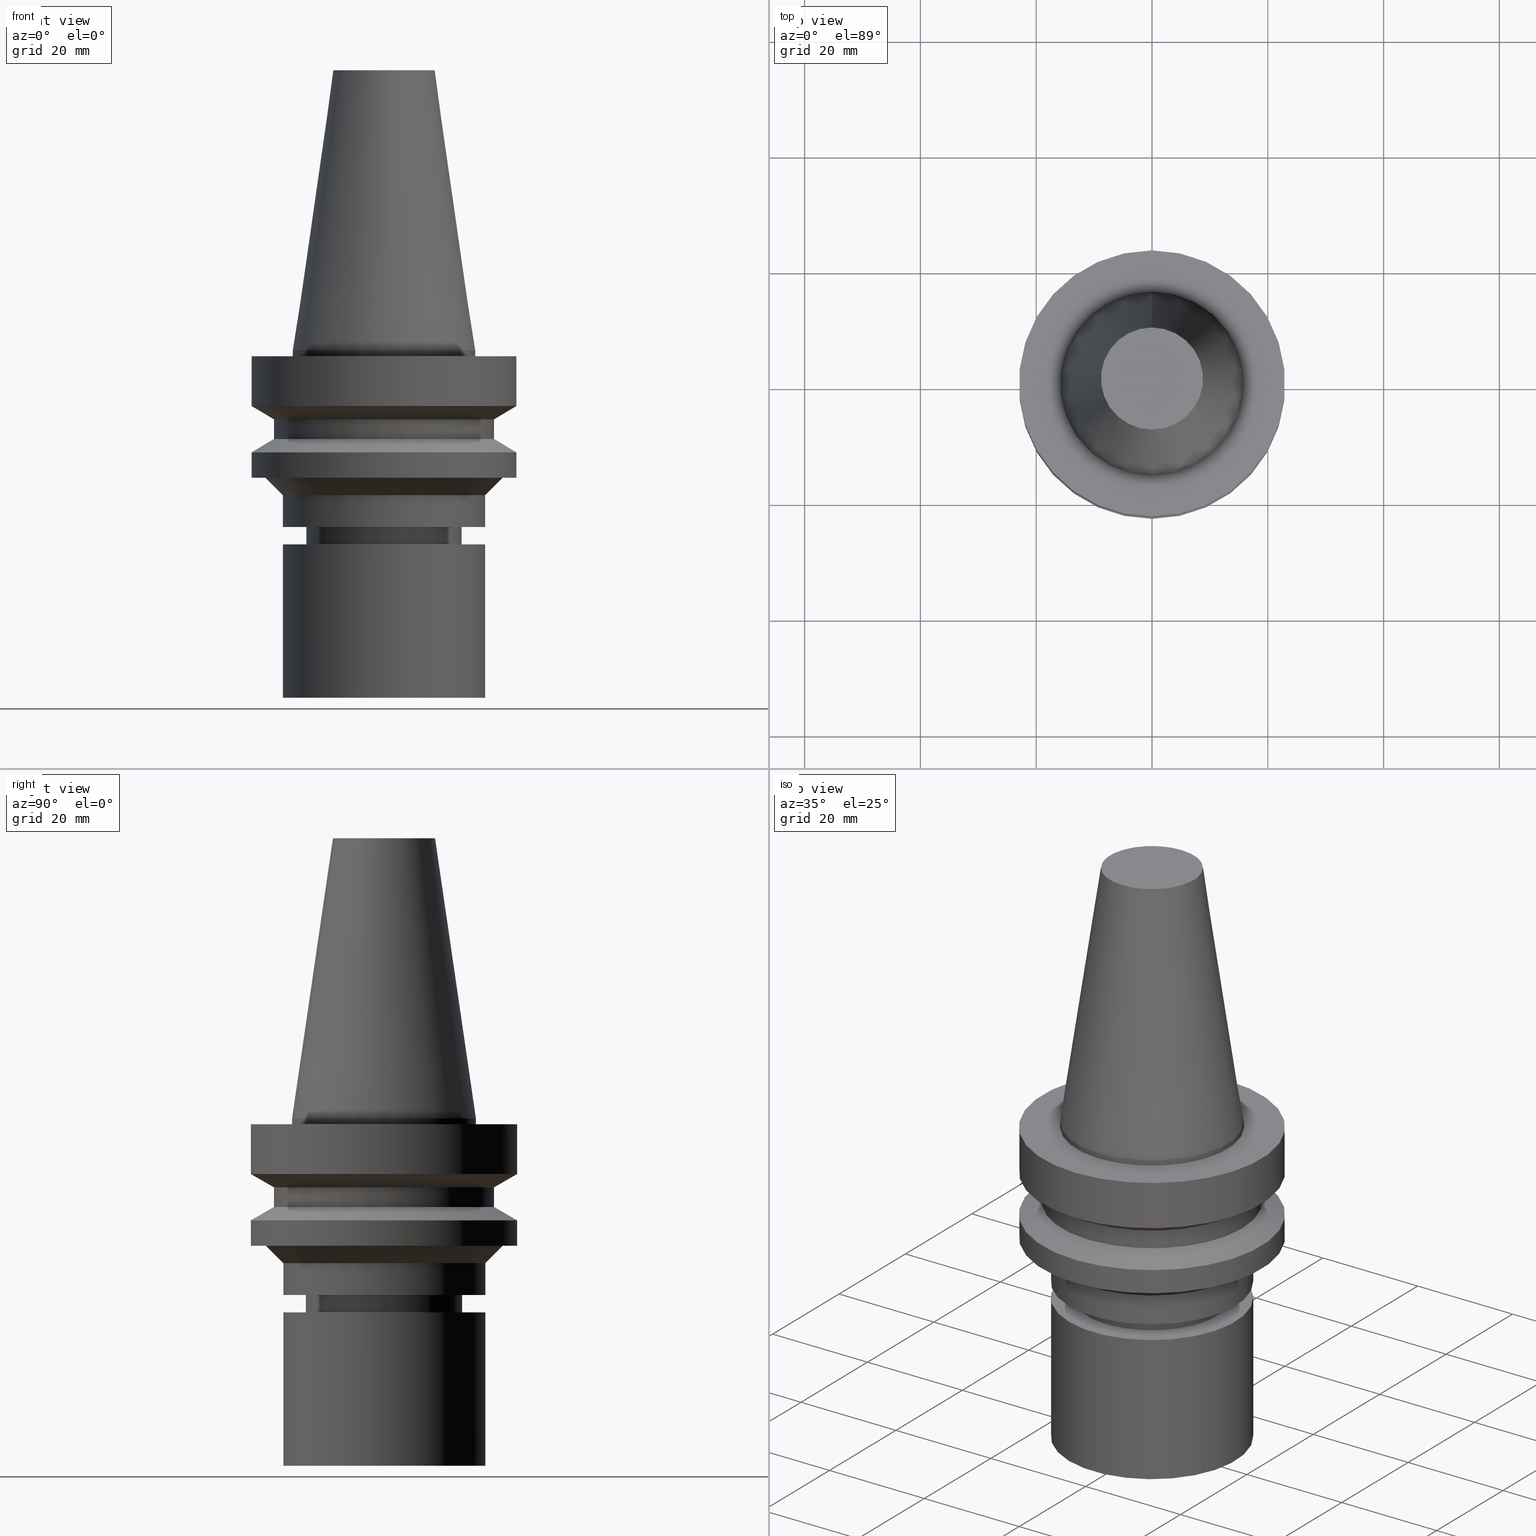
[diagram: canonical four-view strip — front | top / right | iso, engineering-drawing reading convention]
A machine part, canonical four-view strip (front | top / right | iso — engineering-drawing reading convention). The complete STEP part file that produces these views, byte-faithful:
ISO-10303-21;
HEADER;
FILE_DESCRIPTION((''),'1');
FILE_NAME('V:/90_\X2\53D65F9730C730FC30BF\X0\/00_\X2\6DE18DEF30C730FC30BF\X0\/ALL/BBT-BKUS\X2\FF76FF80FF9BFF78FF9E752852A05DE556F3\X0\201801/BBT30-MEGAER/BBT30-MEGAER20-60NL.stp','2018-02-02T07:13:11',(''),(''),'Spatial Interop R21 SP3','Kubotek KeyCreator 2011 V10.0.2 (22737)',' ');
FILE_SCHEMA(('automotive_design'));
ENDSEC;
DATA;
#1=MECHANICAL_DESIGN_GEOMETRIC_PRESENTATION_REPRESENTATION(' ',(#14,#15,#16,#17,#18,#19,#20,#21,#22,#23,#24,#25,#26,#27,#28,#29,#30,#31,#32,#33,#34,#35,#36,#37,#38,#39,#40,#41,#42,#43,#44,#45,#46,#47,#48,#49,#50,#51,#52,#53,#54,#55),#10);
#2=PRODUCT_DEFINITION_CONTEXT('',#56,'design');
#3=APPLICATION_PROTOCOL_DEFINITION('INTERNATIONAL STANDARD','automotive_design',1994,#56);
#4=PRODUCT_CATEGORY_RELATIONSHIP('NONE','NONE',#57,#58);
#5=SHAPE_DEFINITION_REPRESENTATION(#59,#60);
#6=PRODUCT_DEFINITION_CONTEXT('',#61,'design');
#7=APPLICATION_PROTOCOL_DEFINITION('INTERNATIONAL STANDARD','automotive_design',1994,#61);
#8=PRODUCT_CATEGORY_RELATIONSHIP('NONE','NONE',#62,#63);
#9=SHAPE_DEFINITION_REPRESENTATION(#64,#65);
#10= (GEOMETRIC_REPRESENTATION_CONTEXT(3)GLOBAL_UNCERTAINTY_ASSIGNED_CONTEXT((#68))GLOBAL_UNIT_ASSIGNED_CONTEXT((#70,#71,#72))REPRESENTATION_CONTEXT('NONE','WORKSPACE'));
#14=STYLED_ITEM('',(#74),#75);
#15=STYLED_ITEM('',(#76,#77),#78);
#16=STYLED_ITEM('',(#79),#80);
#17=STYLED_ITEM('',(#81,#82),#83);
#18=STYLED_ITEM('',(#84,#85),#86);
#19=STYLED_ITEM('',(#87,#88),#89);
#20=STYLED_ITEM('',(#90),#91);
#21=STYLED_ITEM('',(#92,#93),#94);
#22=STYLED_ITEM('',(#95,#96),#97);
#23=STYLED_ITEM('',(#98),#99);
#24=STYLED_ITEM('',(#100,#101),#102);
#25=STYLED_ITEM('',(#103,#104),#105);
#26=STYLED_ITEM('',(#106,#107),#108);
#27=STYLED_ITEM('',(#109),#110);
#28=STYLED_ITEM('',(#111),#112);
#29=STYLED_ITEM('',(#113),#114);
#30=STYLED_ITEM('',(#115),#116);
#31=STYLED_ITEM('',(#117),#118);
#32=STYLED_ITEM('',(#119),#120);
#33=STYLED_ITEM('',(#121,#122),#123);
#34=STYLED_ITEM('',(#124),#125);
#35=STYLED_ITEM('',(#126,#127),#128);
#36=STYLED_ITEM('',(#129),#130);
#37=STYLED_ITEM('',(#131,#132),#133);
#38=STYLED_ITEM('',(#134,#135),#136);
#39=STYLED_ITEM('',(#137,#138),#139);
#40=STYLED_ITEM('',(#140),#141);
#41=STYLED_ITEM('',(#142,#143),#144);
#42=STYLED_ITEM('',(#145,#146),#147);
#43=STYLED_ITEM('',(#148,#149),#150);
#44=STYLED_ITEM('',(#151),#152);
#45=STYLED_ITEM('',(#153),#154);
#46=STYLED_ITEM('',(#155),#156);
#47=STYLED_ITEM('',(#157),#158);
#48=STYLED_ITEM('',(#159,#160),#161);
#49=STYLED_ITEM('',(#162),#163);
#50=STYLED_ITEM('',(#164,#165),#166);
#51=STYLED_ITEM('',(#167,#168),#169);
#52=STYLED_ITEM('',(#170,#171),#172);
#53=STYLED_ITEM('',(#173,#174),#175);
#54=STYLED_ITEM('',(#176,#177),#178);
#55=STYLED_ITEM('',(#179),#180);
#56=APPLICATION_CONTEXT(' ');
#57=PRODUCT_CATEGORY('part','NONE');
#58=PRODUCT_RELATED_PRODUCT_CATEGORY('detail',' ',(#181));
#59=PRODUCT_DEFINITION_SHAPE('NONE','NONE',#182);
#60=ADVANCED_BREP_SHAPE_REPRESENTATION('Unnamed[1]',(#144,#183),#10);
#61=APPLICATION_CONTEXT(' ');
#62=PRODUCT_CATEGORY('part','NONE');
#63=PRODUCT_RELATED_PRODUCT_CATEGORY('detail',' ',(#184));
#64=PRODUCT_DEFINITION_SHAPE('NONE','NONE',#185);
#65=ADVANCED_BREP_SHAPE_REPRESENTATION('Unnamed[1]',(#86,#186),#10);
#68=UNCERTAINTY_MEASURE_WITH_UNIT(LENGTH_MEASURE(1.0E-006),#70,'','');
#70= (CONVERSION_BASED_UNIT('MILLIMETRE',#189)LENGTH_UNIT()NAMED_UNIT(#192));
#71= (NAMED_UNIT(#194)PLANE_ANGLE_UNIT()SI_UNIT($,.RADIAN.));
#72= (NAMED_UNIT(#194)SOLID_ANGLE_UNIT()SI_UNIT($,.STERADIAN.));
#74=PRESENTATION_STYLE_ASSIGNMENT((#200));
#75=EDGE_CURVE('Unnamed[1]',#201,#201,#202,.T.);
#76=PRESENTATION_STYLE_ASSIGNMENT((#203));
#77=PRESENTATION_STYLE_ASSIGNMENT((#204));
#78=ADVANCED_FACE('Unnamed[1]',(#205,#206),#207,.T.);
#79=PRESENTATION_STYLE_ASSIGNMENT((#208));
#80=EDGE_CURVE('Unnamed[1]',#209,#209,#210,.T.);
#81=PRESENTATION_STYLE_ASSIGNMENT((#211));
#82=PRESENTATION_STYLE_ASSIGNMENT((#212));
#83=ADVANCED_FACE('Unnamed[1]',(#213,#214),#215,.T.);
#84=PRESENTATION_STYLE_ASSIGNMENT((#216));
#85=PRESENTATION_STYLE_ASSIGNMENT((#217));
#86=MANIFOLD_SOLID_BREP('Unnamed[1]',#218);
#87=PRESENTATION_STYLE_ASSIGNMENT((#219));
#88=PRESENTATION_STYLE_ASSIGNMENT((#220));
#89=ADVANCED_FACE('Unnamed[1]',(#221,#222),#223,.T.);
#90=PRESENTATION_STYLE_ASSIGNMENT((#224));
#91=EDGE_CURVE('Unnamed[1]',#225,#225,#226,.T.);
#92=PRESENTATION_STYLE_ASSIGNMENT((#227));
#93=PRESENTATION_STYLE_ASSIGNMENT((#228));
#94=ADVANCED_FACE('Unnamed[1]',(#229,#230),#231,.T.);
#95=PRESENTATION_STYLE_ASSIGNMENT((#232));
#96=PRESENTATION_STYLE_ASSIGNMENT((#233));
#97=ADVANCED_FACE('Unnamed[1]',(#234),#235,.T.);
#98=PRESENTATION_STYLE_ASSIGNMENT((#236));
#99=EDGE_CURVE('Unnamed[1]',#237,#237,#238,.T.);
#100=PRESENTATION_STYLE_ASSIGNMENT((#239));
#101=PRESENTATION_STYLE_ASSIGNMENT((#240));
#102=ADVANCED_FACE('Unnamed[1]',(#241,#242),#243,.T.);
#103=PRESENTATION_STYLE_ASSIGNMENT((#244));
#104=PRESENTATION_STYLE_ASSIGNMENT((#245));
#105=ADVANCED_FACE('Unnamed[1]',(#246,#247),#248,.T.);
#106=PRESENTATION_STYLE_ASSIGNMENT((#249));
#107=PRESENTATION_STYLE_ASSIGNMENT((#250));
#108=ADVANCED_FACE('Unnamed[1]',(#251,#252),#253,.T.);
#109=PRESENTATION_STYLE_ASSIGNMENT((#254));
#110=EDGE_CURVE('Unnamed[1]',#255,#255,#256,.T.);
#111=PRESENTATION_STYLE_ASSIGNMENT((#257));
#112=EDGE_CURVE('Unnamed[1]',#258,#258,#259,.T.);
#113=PRESENTATION_STYLE_ASSIGNMENT((#260));
#114=EDGE_CURVE('Unnamed[1]',#261,#261,#262,.T.);
#115=PRESENTATION_STYLE_ASSIGNMENT((#263));
#116=EDGE_CURVE('Unnamed[1]',#264,#264,#265,.T.);
#117=PRESENTATION_STYLE_ASSIGNMENT((#266));
#118=EDGE_CURVE('Unnamed[1]',#267,#267,#268,.T.);
#119=PRESENTATION_STYLE_ASSIGNMENT((#269));
#120=EDGE_CURVE('Unnamed[1]',#270,#270,#271,.T.);
#121=PRESENTATION_STYLE_ASSIGNMENT((#272));
#122=PRESENTATION_STYLE_ASSIGNMENT((#273));
#123=ADVANCED_FACE('Unnamed[1]',(#274,#275),#276,.T.);
#124=PRESENTATION_STYLE_ASSIGNMENT((#277));
#125=EDGE_CURVE('Unnamed[1]',#278,#278,#279,.T.);
#126=PRESENTATION_STYLE_ASSIGNMENT((#280));
#127=PRESENTATION_STYLE_ASSIGNMENT((#281));
#128=ADVANCED_FACE('Unnamed[1]',(#282,#283),#284,.T.);
#129=PRESENTATION_STYLE_ASSIGNMENT((#285));
#130=EDGE_CURVE('Unnamed[1]',#286,#286,#287,.T.);
#131=PRESENTATION_STYLE_ASSIGNMENT((#288));
#132=PRESENTATION_STYLE_ASSIGNMENT((#289));
#133=ADVANCED_FACE('Unnamed[1]',(#290,#291),#292,.T.);
#134=PRESENTATION_STYLE_ASSIGNMENT((#293));
#135=PRESENTATION_STYLE_ASSIGNMENT((#294));
#136=ADVANCED_FACE('Unnamed[1]',(#295,#296),#297,.T.);
#137=PRESENTATION_STYLE_ASSIGNMENT((#298));
#138=PRESENTATION_STYLE_ASSIGNMENT((#299));
#139=ADVANCED_FACE('Unnamed[1]',(#300),#301,.T.);
#140=PRESENTATION_STYLE_ASSIGNMENT((#302));
#141=EDGE_CURVE('Unnamed[1]',#303,#303,#304,.T.);
#142=PRESENTATION_STYLE_ASSIGNMENT((#305));
#143=PRESENTATION_STYLE_ASSIGNMENT((#306));
#144=MANIFOLD_SOLID_BREP('Unnamed[1]',#307);
#145=PRESENTATION_STYLE_ASSIGNMENT((#308));
#146=PRESENTATION_STYLE_ASSIGNMENT((#309));
#147=ADVANCED_FACE('Unnamed[1]',(#310,#311),#312,.T.);
#148=PRESENTATION_STYLE_ASSIGNMENT((#313));
#149=PRESENTATION_STYLE_ASSIGNMENT((#314));
#150=ADVANCED_FACE('Unnamed[1]',(#315,#316),#317,.T.);
#151=PRESENTATION_STYLE_ASSIGNMENT((#318));
#152=EDGE_CURVE('Unnamed[1]',#319,#319,#320,.T.);
#153=PRESENTATION_STYLE_ASSIGNMENT((#321));
#154=EDGE_CURVE('Unnamed[1]',#322,#322,#323,.T.);
#155=PRESENTATION_STYLE_ASSIGNMENT((#324));
#156=EDGE_CURVE('Unnamed[1]',#325,#325,#326,.T.);
#157=PRESENTATION_STYLE_ASSIGNMENT((#327));
#158=EDGE_CURVE('Unnamed[1]',#328,#328,#329,.T.);
#159=PRESENTATION_STYLE_ASSIGNMENT((#330));
#160=PRESENTATION_STYLE_ASSIGNMENT((#331));
#161=ADVANCED_FACE('Unnamed[1]',(#332),#333,.T.);
#162=PRESENTATION_STYLE_ASSIGNMENT((#334));
#163=EDGE_CURVE('Unnamed[1]',#335,#335,#336,.T.);
#164=PRESENTATION_STYLE_ASSIGNMENT((#337));
#165=PRESENTATION_STYLE_ASSIGNMENT((#338));
#166=ADVANCED_FACE('Unnamed[1]',(#339,#340),#341,.T.);
#167=PRESENTATION_STYLE_ASSIGNMENT((#342));
#168=PRESENTATION_STYLE_ASSIGNMENT((#343));
#169=ADVANCED_FACE('Unnamed[1]',(#344,#345),#346,.T.);
#170=PRESENTATION_STYLE_ASSIGNMENT((#347));
#171=PRESENTATION_STYLE_ASSIGNMENT((#348));
#172=ADVANCED_FACE('Unnamed[1]',(#349),#350,.T.);
#173=PRESENTATION_STYLE_ASSIGNMENT((#351));
#174=PRESENTATION_STYLE_ASSIGNMENT((#352));
#175=ADVANCED_FACE('Unnamed[1]',(#353,#354),#355,.T.);
#176=PRESENTATION_STYLE_ASSIGNMENT((#356));
#177=PRESENTATION_STYLE_ASSIGNMENT((#357));
#178=ADVANCED_FACE('Unnamed[1]',(#358,#359),#360,.T.);
#179=PRESENTATION_STYLE_ASSIGNMENT((#361));
#180=EDGE_CURVE('Unnamed[1]',#362,#362,#363,.T.);
#181=PRODUCT('Unnamed[1]','Unnamed[1]','PART-Unnamed[1]-DESC',(#364));
#182=PRODUCT_DEFINITION('NONE','NONE',#365,#2);
#183=AXIS2_PLACEMENT_3D('',#366,#367,#368);
#184=PRODUCT('Unnamed[1]','Unnamed[1]','PART-Unnamed[1]-DESC',(#369));
#185=PRODUCT_DEFINITION('NONE','NONE',#370,#6);
#186=AXIS2_PLACEMENT_3D('',#371,#372,#373);
#189=LENGTH_MEASURE_WITH_UNIT(LENGTH_MEASURE(1.0),#374);
#192=DIMENSIONAL_EXPONENTS(1.0,0.0,0.0,0.0,0.0,0.0,0.0);
#194=DIMENSIONAL_EXPONENTS(0.0,0.0,0.0,0.0,0.0,0.0,0.0);
#200=CURVE_STYLE('',#375,POSITIVE_LENGTH_MEASURE(1000.0),#376);
#201=VERTEX_POINT('',#377);
#202=CIRCLE('',#378,11.3999999999978);
#203=SURFACE_STYLE_USAGE(.BOTH.,#379);
#204=CURVE_STYLE('',#380,POSITIVE_LENGTH_MEASURE(1000.0),#381);
#205=FACE_BOUND('',#382,.T.);
#206=FACE_OUTER_BOUND('',#383,.T.);
#207=PLANE('',#384);
#208=CURVE_STYLE('',#385,POSITIVE_LENGTH_MEASURE(1000.0),#386);
#209=VERTEX_POINT('',#387);
#210=CIRCLE('',#388,23.0);
#211=SURFACE_STYLE_USAGE(.BOTH.,#389);
#212=CURVE_STYLE('',#390,POSITIVE_LENGTH_MEASURE(1000.0),#391);
#213=FACE_BOUND('',#392,.T.);
#214=FACE_BOUND('',#393,.T.);
#215=CYLINDRICAL_SURFACE('',#394,13.4999999999956);
#216=SURFACE_STYLE_USAGE(.BOTH.,#395);
#217=CURVE_STYLE('',#396,POSITIVE_LENGTH_MEASURE(1000.0),#397);
#218=CLOSED_SHELL('',(#97,#139,#133));
#219=SURFACE_STYLE_USAGE(.BOTH.,#398);
#220=CURVE_STYLE('',#399,POSITIVE_LENGTH_MEASURE(1000.0),#400);
#221=FACE_BOUND('',#401,.T.);
#222=FACE_OUTER_BOUND('',#402,.T.);
#223=PLANE('',#403);
#224=CURVE_STYLE('',#404,POSITIVE_LENGTH_MEASURE(1000.0),#405);
#225=VERTEX_POINT('',#406);
#226=CIRCLE('',#407,23.0);
#227=SURFACE_STYLE_USAGE(.BOTH.,#408);
#228=CURVE_STYLE('',#409,POSITIVE_LENGTH_MEASURE(1000.0),#410);
#229=FACE_BOUND('',#411,.T.);
#230=FACE_BOUND('',#412,.T.);
#231=CONICAL_SURFACE('',#413,21.0,1.04719755058882);
#232=SURFACE_STYLE_USAGE(.BOTH.,#414);
#233=CURVE_STYLE('',#415,POSITIVE_LENGTH_MEASURE(1000.0),#416);
#234=FACE_OUTER_BOUND('',#417,.T.);
#235=PLANE('',#418);
#236=CURVE_STYLE('',#419,POSITIVE_LENGTH_MEASURE(1000.0),#420);
#237=VERTEX_POINT('',#421);
#238=CIRCLE('',#422,12.4999999999999);
#239=SURFACE_STYLE_USAGE(.BOTH.,#423);
#240=CURVE_STYLE('',#424,POSITIVE_LENGTH_MEASURE(1000.0),#425);
#241=FACE_BOUND('',#426,.T.);
#242=FACE_BOUND('',#427,.T.);
#243=CONICAL_SURFACE('',#428,12.3457500009933,0.144815870013618);
#244=SURFACE_STYLE_USAGE(.BOTH.,#429);
#245=CURVE_STYLE('',#430,POSITIVE_LENGTH_MEASURE(1000.0),#431);
#246=FACE_BOUND('',#432,.T.);
#247=FACE_BOUND('',#433,.T.);
#248=CYLINDRICAL_SURFACE('',#434,17.4999999999997);
#249=SURFACE_STYLE_USAGE(.BOTH.,#435);
#250=CURVE_STYLE('',#436,POSITIVE_LENGTH_MEASURE(1000.0),#437);
#251=FACE_BOUND('',#438,.T.);
#252=FACE_BOUND('',#439,.T.);
#253=CONICAL_SURFACE('',#440,13.0000000000002,1.04719755119484);
#254=CURVE_STYLE('',#441,POSITIVE_LENGTH_MEASURE(1000.0),#442);
#255=VERTEX_POINT('',#443);
#256=CIRCLE('',#444,19.0);
#257=CURVE_STYLE('',#445,POSITIVE_LENGTH_MEASURE(1000.0),#446);
#258=VERTEX_POINT('',#447);
#259=CIRCLE('',#448,17.5);
#260=CURVE_STYLE('',#449,POSITIVE_LENGTH_MEASURE(1000.0),#450);
#261=VERTEX_POINT('',#451);
#262=CIRCLE('',#452,17.5);
#263=CURVE_STYLE('',#453,POSITIVE_LENGTH_MEASURE(1000.0),#454);
#264=VERTEX_POINT('',#455);
#265=CIRCLE('',#456,8.81650000198669);
#266=CURVE_STYLE('',#457,POSITIVE_LENGTH_MEASURE(1000.0),#458);
#267=VERTEX_POINT('',#459);
#268=CIRCLE('',#460,20.4999999999995);
#269=CURVE_STYLE('',#461,POSITIVE_LENGTH_MEASURE(1000.0),#462);
#270=VERTEX_POINT('',#463);
#271=CIRCLE('',#464,17.4999999999995);
#272=SURFACE_STYLE_USAGE(.BOTH.,#465);
#273=CURVE_STYLE('',#466,POSITIVE_LENGTH_MEASURE(1000.0),#467);
#274=FACE_BOUND('',#468,.T.);
#275=FACE_BOUND('',#469,.T.);
#276=CYLINDRICAL_SURFACE('',#470,15.875);
#277=CURVE_STYLE('',#471,POSITIVE_LENGTH_MEASURE(1000.0),#472);
#278=VERTEX_POINT('',#473);
#279=CIRCLE('',#474,23.0);
#280=SURFACE_STYLE_USAGE(.BOTH.,#475);
#281=CURVE_STYLE('',#476,POSITIVE_LENGTH_MEASURE(1000.0),#477);
#282=FACE_BOUND('',#478,.T.);
#283=FACE_BOUND('',#479,.T.);
#284=CONICAL_SURFACE('',#480,18.9999999999995,0.785398163397406);
#285=CURVE_STYLE('',#481,POSITIVE_LENGTH_MEASURE(1000.0),#482);
#286=VERTEX_POINT('',#483);
#287=CIRCLE('',#484,19.0);
#288=SURFACE_STYLE_USAGE(.BOTH.,#485);
#289=CURVE_STYLE('',#486,POSITIVE_LENGTH_MEASURE(1000.0),#487);
#290=FACE_BOUND('',#488,.T.);
#291=FACE_BOUND('',#489,.T.);
#292=CYLINDRICAL_SURFACE('',#490,17.5);
#293=SURFACE_STYLE_USAGE(.BOTH.,#491);
#294=CURVE_STYLE('',#492,POSITIVE_LENGTH_MEASURE(1000.0),#493);
#295=FACE_BOUND('',#494,.T.);
#296=FACE_BOUND('',#495,.T.);
#297=CYLINDRICAL_SURFACE('',#496,12.4999999999999);
#298=SURFACE_STYLE_USAGE(.BOTH.,#497);
#299=CURVE_STYLE('',#498,POSITIVE_LENGTH_MEASURE(1000.0),#499);
#300=FACE_OUTER_BOUND('',#500,.T.);
#301=PLANE('',#501);
#302=CURVE_STYLE('',#502,POSITIVE_LENGTH_MEASURE(1000.0),#503);
#303=VERTEX_POINT('',#504);
#304=CIRCLE('',#505,12.4999999999998);
#305=SURFACE_STYLE_USAGE(.BOTH.,#506);
#306=CURVE_STYLE('',#507,POSITIVE_LENGTH_MEASURE(1000.0),#508);
#307=CLOSED_SHELL('',(#172,#102,#123,#178,#150,#169,#147,#94,#175,#78,#128,#105,#89,#83,#108,#136,#166,#161));
#308=SURFACE_STYLE_USAGE(.BOTH.,#509);
#309=CURVE_STYLE('',#510,POSITIVE_LENGTH_MEASURE(1000.0),#511);
#310=FACE_BOUND('',#512,.T.);
#311=FACE_BOUND('',#513,.T.);
#312=CYLINDRICAL_SURFACE('',#514,19.0);
#313=SURFACE_STYLE_USAGE(.BOTH.,#515);
#314=CURVE_STYLE('',#516,POSITIVE_LENGTH_MEASURE(1000.0),#517);
#315=FACE_BOUND('',#518,.T.);
#316=FACE_BOUND('',#519,.T.);
#317=CYLINDRICAL_SURFACE('',#520,23.0);
#318=CURVE_STYLE('',#521,POSITIVE_LENGTH_MEASURE(1000.0),#522);
#319=VERTEX_POINT('',#523);
#320=CIRCLE('',#524,15.875);
#321=CURVE_STYLE('',#525,POSITIVE_LENGTH_MEASURE(1000.0),#526);
#322=VERTEX_POINT('',#527);
#323=CIRCLE('',#528,13.4999999999908);
#324=CURVE_STYLE('',#529,POSITIVE_LENGTH_MEASURE(1000.0),#530);
#325=VERTEX_POINT('',#531);
#326=CIRCLE('',#532,13.5000000000005);
#327=CURVE_STYLE('',#533,POSITIVE_LENGTH_MEASURE(1000.0),#534);
#328=VERTEX_POINT('',#535);
#329=CIRCLE('',#536,23.0);
#330=SURFACE_STYLE_USAGE(.BOTH.,#537);
#331=CURVE_STYLE('',#538,POSITIVE_LENGTH_MEASURE(1000.0),#539);
#332=FACE_OUTER_BOUND('',#540,.T.);
#333=PLANE('',#541);
#334=CURVE_STYLE('',#542,POSITIVE_LENGTH_MEASURE(1000.0),#543);
#335=VERTEX_POINT('',#544);
#336=CIRCLE('',#545,17.4999999999999);
#337=SURFACE_STYLE_USAGE(.BOTH.,#546);
#338=CURVE_STYLE('',#547,POSITIVE_LENGTH_MEASURE(1000.0),#548);
#339=FACE_BOUND('',#549,.T.);
#340=FACE_BOUND('',#550,.T.);
#341=CONICAL_SURFACE('',#551,11.9499999999988,0.523598775598662);
#342=SURFACE_STYLE_USAGE(.BOTH.,#552);
#343=CURVE_STYLE('',#553,POSITIVE_LENGTH_MEASURE(1000.0),#554);
#344=FACE_BOUND('',#555,.T.);
#345=FACE_BOUND('',#556,.T.);
#346=CONICAL_SURFACE('',#557,21.0,1.04719755058881);
#347=SURFACE_STYLE_USAGE(.BOTH.,#558);
#348=CURVE_STYLE('',#559,POSITIVE_LENGTH_MEASURE(1000.0),#560);
#349=FACE_OUTER_BOUND('',#561,.T.);
#350=PLANE('',#562);
#351=SURFACE_STYLE_USAGE(.BOTH.,#563);
#352=CURVE_STYLE('',#564,POSITIVE_LENGTH_MEASURE(1000.0),#565);
#353=FACE_BOUND('',#566,.T.);
#354=FACE_BOUND('',#567,.T.);
#355=CYLINDRICAL_SURFACE('',#568,23.0);
#356=SURFACE_STYLE_USAGE(.BOTH.,#569);
#357=CURVE_STYLE('',#570,POSITIVE_LENGTH_MEASURE(1000.0),#571);
#358=FACE_OUTER_BOUND('',#572,.T.);
#359=FACE_BOUND('',#573,.T.);
#360=PLANE('',#574);
#361=CURVE_STYLE('',#575,POSITIVE_LENGTH_MEASURE(1000.0),#576);
#362=VERTEX_POINT('',#577);
#363=CIRCLE('',#578,15.875);
#364=PRODUCT_CONTEXT('',#56,'mechanical');
#365=PRODUCT_DEFINITION_FORMATION_WITH_SPECIFIED_SOURCE(' ','NONE',#181,.NOT_KNOWN.);
#366=CARTESIAN_POINT('',(0.0,0.0,0.0));
#367=DIRECTION('',(0.0,0.0,1.0));
#368=DIRECTION('',(1.0,0.0,0.0));
#369=PRODUCT_CONTEXT('',#61,'mechanical');
#370=PRODUCT_DEFINITION_FORMATION_WITH_SPECIFIED_SOURCE(' ','NONE',#184,.NOT_KNOWN.);
#371=CARTESIAN_POINT('',(0.0,0.0,0.0));
#372=DIRECTION('',(0.0,0.0,1.0));
#373=DIRECTION('',(1.0,0.0,0.0));
#374= (NAMED_UNIT(#192)LENGTH_UNIT()SI_UNIT(.MILLI.,.METRE.));
#375=DRAUGHTING_PRE_DEFINED_CURVE_FONT('continuous');
#376=COLOUR_RGB('',0.0,1.0,0.0);
#377=CARTESIAN_POINT('',(3.07386346585987E-015,11.3999999999978,-50.2000000000002));
#378=AXIS2_PLACEMENT_3D('',#580,#581,#582);
#379=SURFACE_SIDE_STYLE('',(#583));
#380=DRAUGHTING_PRE_DEFINED_CURVE_FONT('continuous');
#381=COLOUR_RGB('',0.0,1.0,0.0);
#382=EDGE_LOOP('',(#584));
#383=EDGE_LOOP('',(#585));
#384=AXIS2_PLACEMENT_3D('',#586,#587,#588);
#385=DRAUGHTING_PRE_DEFINED_CURVE_FONT('continuous');
#386=COLOUR_RGB('',0.0,1.0,0.0);
#387=CARTESIAN_POINT('',(1.07768918324967E-015,23.0,-17.6));
#388=AXIS2_PLACEMENT_3D('',#589,#590,#591);
#389=SURFACE_SIDE_STYLE('',(#592));
#390=DRAUGHTING_PRE_DEFINED_CURVE_FONT('continuous');
#391=COLOUR_RGB('',0.0,1.0,0.0);
#392=EDGE_LOOP('',(#593));
#393=EDGE_LOOP('',(#594));
#394=AXIS2_PLACEMENT_3D('',#595,#596,#597);
#395=SURFACE_SIDE_STYLE('',(#598));
#396=DRAUGHTING_PRE_DEFINED_CURVE_FONT('continuous');
#397=COLOUR_RGB('',0.0,1.0,0.0);
#398=SURFACE_SIDE_STYLE('',(#599));
#399=DRAUGHTING_PRE_DEFINED_CURVE_FONT('continuous');
#400=COLOUR_RGB('',0.0,1.0,0.0);
#401=EDGE_LOOP('',(#600));
#402=EDGE_LOOP('',(#601));
#403=AXIS2_PLACEMENT_3D('',#602,#603,#604);
#404=DRAUGHTING_PRE_DEFINED_CURVE_FONT('continuous');
#405=COLOUR_RGB('',0.0,1.0,0.0);
#406=CARTESIAN_POINT('',(1.34711147906209E-015,23.0,-22.0));
#407=AXIS2_PLACEMENT_3D('',#605,#606,#607);
#408=SURFACE_SIDE_STYLE('',(#608));
#409=DRAUGHTING_PRE_DEFINED_CURVE_FONT('continuous');
#410=COLOUR_RGB('',0.0,1.0,0.0);
#411=EDGE_LOOP('',(#609));
#412=EDGE_LOOP('',(#610));
#413=AXIS2_PLACEMENT_3D('',#611,#612,#613);
#414=SURFACE_SIDE_STYLE('',(#614));
#415=DRAUGHTING_PRE_DEFINED_CURVE_FONT('continuous');
#416=COLOUR_RGB('',0.0,1.0,0.0);
#417=EDGE_LOOP('',(#615));
#418=AXIS2_PLACEMENT_3D('',#616,#617,#618);
#419=DRAUGHTING_PRE_DEFINED_CURVE_FONT('continuous');
#420=COLOUR_RGB('',0.0,1.0,0.0);
#421=CARTESIAN_POINT('',(2.2594534521581E-015,12.4999999999999,-36.8996751345975));
#422=AXIS2_PLACEMENT_3D('',#619,#620,#621);
#423=SURFACE_SIDE_STYLE('',(#622));
#424=DRAUGHTING_PRE_DEFINED_CURVE_FONT('continuous');
#425=COLOUR_RGB('',0.0,1.0,0.0);
#426=EDGE_LOOP('',(#623));
#427=EDGE_LOOP('',(#624));
#428=AXIS2_PLACEMENT_3D('',#625,#626,#627);
#429=SURFACE_SIDE_STYLE('',(#628));
#430=DRAUGHTING_PRE_DEFINED_CURVE_FONT('continuous');
#431=COLOUR_RGB('',0.0,1.0,0.0);
#432=EDGE_LOOP('',(#629));
#433=EDGE_LOOP('',(#630));
#434=AXIS2_PLACEMENT_3D('',#631,#632,#633);
#435=SURFACE_SIDE_STYLE('',(#634));
#436=DRAUGHTING_PRE_DEFINED_CURVE_FONT('continuous');
#437=COLOUR_RGB('',0.0,1.0,0.0);
#438=EDGE_LOOP('',(#635));
#439=EDGE_LOOP('',(#636));
#440=AXIS2_PLACEMENT_3D('',#637,#638,#639);
#441=DRAUGHTING_PRE_DEFINED_CURVE_FONT('continuous');
#442=COLOUR_RGB('',0.0,1.0,0.0);
#443=CARTESIAN_POINT('',(7.29240495619202E-016,19.0,-11.90940108));
#444=AXIS2_PLACEMENT_3D('',#640,#641,#642);
#445=DRAUGHTING_PRE_DEFINED_CURVE_FONT('continuous');
#446=COLOUR_RGB('',0.0,1.0,0.0);
#447=CARTESIAN_POINT('',(3.67394039744206E-015,17.5,-60.0));
#448=AXIS2_PLACEMENT_3D('',#643,#644,#645);
#449=DRAUGHTING_PRE_DEFINED_CURVE_FONT('continuous');
#450=COLOUR_RGB('',0.0,1.0,0.0);
#451=CARTESIAN_POINT('',(2.05128432290318E-015,17.5,-33.5000152587891));
#452=AXIS2_PLACEMENT_3D('',#646,#647,#648);
#453=DRAUGHTING_PRE_DEFINED_CURVE_FONT('continuous');
#454=COLOUR_RGB('',0.0,1.0,0.0);
#455=CARTESIAN_POINT('',(-2.96364525393659E-015,8.81650000198669,48.4));
#456=AXIS2_PLACEMENT_3D('',#649,#650,#651);
#457=DRAUGHTING_PRE_DEFINED_CURVE_FONT('continuous');
#458=COLOUR_RGB('',0.0,1.0,0.0);
#459=CARTESIAN_POINT('',(1.34711147906209E-015,20.4999999999995,-22.0));
#460=AXIS2_PLACEMENT_3D('',#652,#653,#654);
#461=DRAUGHTING_PRE_DEFINED_CURVE_FONT('continuous');
#462=COLOUR_RGB('',0.0,1.0,0.0);
#463=CARTESIAN_POINT('',(1.53080849893421E-015,17.4999999999995,-25.0000000000002));
#464=AXIS2_PLACEMENT_3D('',#655,#656,#657);
#465=SURFACE_SIDE_STYLE('',(#658));
#466=DRAUGHTING_PRE_DEFINED_CURVE_FONT('continuous');
#467=COLOUR_RGB('',0.0,1.0,0.0);
#468=EDGE_LOOP('',(#659));
#469=EDGE_LOOP('',(#660));
#470=AXIS2_PLACEMENT_3D('',#661,#662,#663);
#471=DRAUGHTING_PRE_DEFINED_CURVE_FONT('continuous');
#472=COLOUR_RGB('',0.0,1.0,0.0);
#473=CARTESIAN_POINT('',(6.12323399573674E-017,23.0,-0.999999999999997));
#474=AXIS2_PLACEMENT_3D('',#664,#665,#666);
#475=SURFACE_SIDE_STYLE('',(#667));
#476=DRAUGHTING_PRE_DEFINED_CURVE_FONT('continuous');
#477=COLOUR_RGB('',0.0,1.0,0.0);
#478=EDGE_LOOP('',(#668));
#479=EDGE_LOOP('',(#669));
#480=AXIS2_PLACEMENT_3D('',#670,#671,#672);
#481=DRAUGHTING_PRE_DEFINED_CURVE_FONT('continuous');
#482=COLOUR_RGB('',0.0,1.0,0.0);
#483=CARTESIAN_POINT('',(9.36279151221199E-016,19.0,-15.29059892));
#484=AXIS2_PLACEMENT_3D('',#673,#674,#675);
#485=SURFACE_SIDE_STYLE('',(#676));
#486=DRAUGHTING_PRE_DEFINED_CURVE_FONT('continuous');
#487=COLOUR_RGB('',0.0,1.0,0.0);
#488=EDGE_LOOP('',(#677));
#489=EDGE_LOOP('',(#678));
#490=AXIS2_PLACEMENT_3D('',#679,#680,#681);
#491=SURFACE_SIDE_STYLE('',(#682));
#492=DRAUGHTING_PRE_DEFINED_CURVE_FONT('continuous');
#493=COLOUR_RGB('',0.0,1.0,0.0);
#494=EDGE_LOOP('',(#683));
#495=EDGE_LOOP('',(#684));
#496=AXIS2_PLACEMENT_3D('',#685,#686,#687);
#497=SURFACE_SIDE_STYLE('',(#688));
#498=DRAUGHTING_PRE_DEFINED_CURVE_FONT('continuous');
#499=COLOUR_RGB('',0.0,1.0,0.0);
#500=EDGE_LOOP('',(#689));
#501=AXIS2_PLACEMENT_3D('',#690,#691,#692);
#502=DRAUGHTING_PRE_DEFINED_CURVE_FONT('continuous');
#503=COLOUR_RGB('',0.0,1.0,0.0);
#504=CARTESIAN_POINT('',(2.95720018960001E-015,12.4999999999998,-48.2947441116725));
#505=AXIS2_PLACEMENT_3D('',#693,#694,#695);
#506=SURFACE_SIDE_STYLE('',(#696));
#507=DRAUGHTING_PRE_DEFINED_CURVE_FONT('continuous');
#508=COLOUR_RGB('',0.0,1.0,0.0);
#509=SURFACE_SIDE_STYLE('',(#697));
#510=DRAUGHTING_PRE_DEFINED_CURVE_FONT('continuous');
#511=COLOUR_RGB('',0.0,1.0,0.0);
#512=EDGE_LOOP('',(#698));
#513=EDGE_LOOP('',(#699));
#514=AXIS2_PLACEMENT_3D('',#700,#701,#702);
#515=SURFACE_SIDE_STYLE('',(#703));
#516=DRAUGHTING_PRE_DEFINED_CURVE_FONT('continuous');
#517=COLOUR_RGB('',0.0,1.0,0.0);
#518=EDGE_LOOP('',(#704));
#519=EDGE_LOOP('',(#705));
#520=AXIS2_PLACEMENT_3D('',#706,#707,#708);
#521=DRAUGHTING_PRE_DEFINED_CURVE_FONT('continuous');
#522=COLOUR_RGB('',0.0,1.0,0.0);
#523=CARTESIAN_POINT('',(6.12323399573675E-017,15.875,-0.999999999999998));
#524=AXIS2_PLACEMENT_3D('',#709,#710,#711);
#525=DRAUGHTING_PRE_DEFINED_CURVE_FONT('continuous');
#526=COLOUR_RGB('',0.0,1.0,0.0);
#527=CARTESIAN_POINT('',(1.86758636869969E-015,13.4999999999908,-30.4999999999996));
#528=AXIS2_PLACEMENT_3D('',#712,#713,#714);
#529=DRAUGHTING_PRE_DEFINED_CURVE_FONT('continuous');
#530=COLOUR_RGB('',0.0,1.0,0.0);
#531=CARTESIAN_POINT('',(2.22410094420044E-015,13.5000000000005,-36.3223248654052));
#532=AXIS2_PLACEMENT_3D('',#715,#716,#717);
#533=DRAUGHTING_PRE_DEFINED_CURVE_FONT('continuous');
#534=COLOUR_RGB('',0.0,1.0,0.0);
#535=CARTESIAN_POINT('',(5.87830463590729E-016,23.0,-9.59999999999999));
#536=AXIS2_PLACEMENT_3D('',#718,#719,#720);
#537=SURFACE_SIDE_STYLE('',(#721));
#538=DRAUGHTING_PRE_DEFINED_CURVE_FONT('continuous');
#539=COLOUR_RGB('',0.0,1.0,0.0);
#540=EDGE_LOOP('',(#722));
#541=AXIS2_PLACEMENT_3D('',#723,#724,#725);
#542=DRAUGHTING_PRE_DEFINED_CURVE_FONT('continuous');
#543=COLOUR_RGB('',0.0,1.0,0.0);
#544=CARTESIAN_POINT('',(1.8675863686997E-015,17.4999999999999,-30.4999999999998));
#545=AXIS2_PLACEMENT_3D('',#726,#727,#728);
#546=SURFACE_SIDE_STYLE('',(#729));
#547=DRAUGHTING_PRE_DEFINED_CURVE_FONT('continuous');
#548=COLOUR_RGB('',0.0,1.0,0.0);
#549=EDGE_LOOP('',(#730));
#550=EDGE_LOOP('',(#731));
#551=AXIS2_PLACEMENT_3D('',#732,#733,#734);
#552=SURFACE_SIDE_STYLE('',(#735));
#553=DRAUGHTING_PRE_DEFINED_CURVE_FONT('continuous');
#554=COLOUR_RGB('',0.0,1.0,0.0);
#555=EDGE_LOOP('',(#736));
#556=EDGE_LOOP('',(#737));
#557=AXIS2_PLACEMENT_3D('',#738,#739,#740);
#558=SURFACE_SIDE_STYLE('',(#741));
#559=DRAUGHTING_PRE_DEFINED_CURVE_FONT('continuous');
#560=COLOUR_RGB('',0.0,1.0,0.0);
#561=EDGE_LOOP('',(#742));
#562=AXIS2_PLACEMENT_3D('',#743,#744,#745);
#563=SURFACE_SIDE_STYLE('',(#746));
#564=DRAUGHTING_PRE_DEFINED_CURVE_FONT('continuous');
#565=COLOUR_RGB('',0.0,1.0,0.0);
#566=EDGE_LOOP('',(#747));
#567=EDGE_LOOP('',(#748));
#568=AXIS2_PLACEMENT_3D('',#749,#750,#751);
#569=SURFACE_SIDE_STYLE('',(#752));
#570=DRAUGHTING_PRE_DEFINED_CURVE_FONT('continuous');
#571=COLOUR_RGB('',0.0,1.0,0.0);
#572=EDGE_LOOP('',(#753));
#573=EDGE_LOOP('',(#754));
#574=AXIS2_PLACEMENT_3D('',#755,#756,#757);
#575=DRAUGHTING_PRE_DEFINED_CURVE_FONT('continuous');
#576=COLOUR_RGB('',0.0,1.0,0.0);
#577=CARTESIAN_POINT('',(-1.95674482349743E-031,15.875,1.94412679364642E-015));
#578=AXIS2_PLACEMENT_3D('',#758,#759,#760);
#580=CARTESIAN_POINT('',(3.07386346585987E-015,6.14772693171974E-015,-50.2000000000002));
#581=DIRECTION('',(6.12323399573676E-017,1.22464679914735E-016,-1.0));
#582=DIRECTION('',(-1.23259516440783E-032,1.0,1.22464679914735E-016));
#583=SURFACE_STYLE_FILL_AREA(#761);
#584=ORIENTED_EDGE('',*,*,#118,.F.);
#585=ORIENTED_EDGE('',*,*,#91,.T.);
#586=CARTESIAN_POINT('',(1.34711147906209E-015,21.7499999999997,-22.0));
#587=DIRECTION('',(6.12323399573677E-017,1.22464679914735E-016,-1.0));
#588=DIRECTION('',(-1.23259516440783E-032,1.0,1.22464679914735E-016));
#589=CARTESIAN_POINT('',(1.07768918324967E-015,2.15537836649934E-015,-17.6));
#590=DIRECTION('',(6.12323399573677E-017,1.22464679914735E-016,-1.0));
#591=DIRECTION('',(-1.23259516440783E-032,1.0,1.22464679914735E-016));
#592=SURFACE_STYLE_FILL_AREA(#762);
#593=ORIENTED_EDGE('',*,*,#156,.F.);
#594=ORIENTED_EDGE('',*,*,#154,.T.);
#595=CARTESIAN_POINT('',(2.04584365645006E-015,4.09168731290013E-015,-33.4111624327024));
#596=DIRECTION('',(6.12323399573677E-017,1.22464679914735E-016,-1.0));
#597=DIRECTION('',(-1.23259516440783E-032,1.0,1.22464679914735E-016));
#598=SURFACE_STYLE_FILL_AREA(#763);
#599=SURFACE_STYLE_FILL_AREA(#764);
#600=ORIENTED_EDGE('',*,*,#154,.F.);
#601=ORIENTED_EDGE('',*,*,#163,.T.);
#602=CARTESIAN_POINT('',(1.8675863686997E-015,15.4999999999954,-30.4999999999997));
#603=DIRECTION('',(6.12323399573677E-017,-4.78391699837827E-014,-1.0));
#604=DIRECTION('',(2.92447716699451E-030,1.0,-4.78391699837827E-014));
#605=CARTESIAN_POINT('',(1.34711147906209E-015,2.69422295812418E-015,-22.0));
#606=DIRECTION('',(6.12323399573677E-017,1.22464679914735E-016,-1.0));
#607=DIRECTION('',(-1.23259516440783E-032,1.0,1.22464679914735E-016));
#608=SURFACE_STYLE_FILL_AREA(#765);
#609=ORIENTED_EDGE('',*,*,#80,.F.);
#610=ORIENTED_EDGE('',*,*,#130,.T.);
#611=CARTESIAN_POINT('',(1.00698416723543E-015,2.01396833447087E-015,-16.44529946));
#612=DIRECTION('',(6.12323399573677E-017,1.22464679914735E-016,-1.0));
#613=DIRECTION('',(-1.23259516440783E-032,1.0,1.22464679914735E-016));
#614=SURFACE_STYLE_FILL_AREA(#766);
#615=ORIENTED_EDGE('',*,*,#112,.T.);
#616=CARTESIAN_POINT('',(3.67394039744206E-015,8.75000000000001,-60.0));
#617=DIRECTION('',(6.12323399573677E-017,1.22464679914735E-016,-1.0));
#618=DIRECTION('',(-1.23259516440783E-032,1.0,1.22464679914735E-016));
#619=CARTESIAN_POINT('',(2.2594534521581E-015,4.5189069043162E-015,-36.8996751345975));
#620=DIRECTION('',(6.12323399573677E-017,1.22464679914735E-016,-1.0));
#621=DIRECTION('',(-1.23259516440783E-032,1.0,1.22464679914735E-016));
#622=SURFACE_STYLE_FILL_AREA(#767);
#623=ORIENTED_EDGE('',*,*,#180,.F.);
#624=ORIENTED_EDGE('',*,*,#116,.T.);
#625=CARTESIAN_POINT('',(-1.4818226269683E-015,-2.96364525393659E-015,24.2));
#626=DIRECTION('',(6.12323399573677E-017,1.22464679914735E-016,-1.0));
#627=DIRECTION('',(-1.23259516440783E-032,1.0,1.22464679914735E-016));
#628=SURFACE_STYLE_FILL_AREA(#768);
#629=ORIENTED_EDGE('',*,*,#163,.F.);
#630=ORIENTED_EDGE('',*,*,#120,.T.);
#631=CARTESIAN_POINT('',(1.69919743381695E-015,3.39839486763391E-015,-27.75));
#632=DIRECTION('',(6.12323399573677E-017,1.22464679914735E-016,-1.0));
#633=DIRECTION('',(-1.23259516440783E-032,1.0,1.22464679914735E-016));
#634=SURFACE_STYLE_FILL_AREA(#769);
#635=ORIENTED_EDGE('',*,*,#99,.F.);
#636=ORIENTED_EDGE('',*,*,#156,.T.);
#637=CARTESIAN_POINT('',(2.24177719817927E-015,4.48355439635854E-015,-36.6110000000013));
#638=DIRECTION('',(-6.12323399573677E-017,-1.22464679914735E-016,1.0));
#639=DIRECTION('',(-1.23259516440783E-032,1.0,1.22464679914735E-016));
#640=CARTESIAN_POINT('',(7.29240495619202E-016,1.4584809912384E-015,-11.90940108));
#641=DIRECTION('',(6.12323399573677E-017,1.22464679914735E-016,-1.0));
#642=DIRECTION('',(-1.23259516440783E-032,1.0,1.22464679914735E-016));
#643=CARTESIAN_POINT('',(3.67394039744206E-015,7.34788079488411E-015,-60.0));
#644=DIRECTION('',(6.12323399573677E-017,1.22464679914735E-016,-1.0));
#645=DIRECTION('',(-1.23259516440783E-032,1.0,1.22464679914735E-016));
#646=CARTESIAN_POINT('',(2.05128432290318E-015,4.10256864580635E-015,-33.5000152587891));
#647=DIRECTION('',(6.12323399573677E-017,1.22464679914735E-016,-1.0));
#648=DIRECTION('',(-1.23259516440783E-032,1.0,1.22464679914735E-016));
#649=CARTESIAN_POINT('',(-2.96364525393659E-015,-5.92729050787319E-015,48.4));
#650=DIRECTION('',(6.12323399573677E-017,1.22464679914735E-016,-1.0));
#651=DIRECTION('',(-1.23259516440783E-032,1.0,1.22464679914735E-016));
#652=CARTESIAN_POINT('',(1.34711147906209E-015,2.69422295812418E-015,-22.0));
#653=DIRECTION('',(6.12323399573677E-017,1.22464679914735E-016,-1.0));
#654=DIRECTION('',(-1.23259516440783E-032,1.0,1.22464679914735E-016));
#655=CARTESIAN_POINT('',(1.53080849893421E-015,3.06161699786841E-015,-25.0000000000002));
#656=DIRECTION('',(6.12323399573677E-017,1.22464679914735E-016,-1.0));
#657=DIRECTION('',(-1.23259516440783E-032,1.0,1.22464679914735E-016));
#658=SURFACE_STYLE_FILL_AREA(#770);
#659=ORIENTED_EDGE('',*,*,#152,.F.);
#660=ORIENTED_EDGE('',*,*,#180,.T.);
#661=CARTESIAN_POINT('',(3.06161699786838E-017,6.12323399573676E-017,-0.5));
#662=DIRECTION('',(6.12323399573677E-017,1.22464679914735E-016,-1.0));
#663=DIRECTION('',(-1.23259516440783E-032,1.0,1.22464679914735E-016));
#664=CARTESIAN_POINT('',(6.12323399573677E-017,1.22464679914735E-016,-1.0));
#665=DIRECTION('',(6.12323399573677E-017,1.22464679914735E-016,-1.0));
#666=DIRECTION('',(-1.23259516440783E-032,1.0,1.22464679914735E-016));
#667=SURFACE_STYLE_FILL_AREA(#771);
#668=ORIENTED_EDGE('',*,*,#120,.F.);
#669=ORIENTED_EDGE('',*,*,#118,.T.);
#670=CARTESIAN_POINT('',(1.43895998899815E-015,2.87791997799629E-015,-23.5000000000001));
#671=DIRECTION('',(-6.12323399573677E-017,-1.22464679914735E-016,1.0));
#672=DIRECTION('',(-1.23259516440783E-032,1.0,1.22464679914735E-016));
#673=CARTESIAN_POINT('',(9.36279151221199E-016,1.8725583024424E-015,-15.29059892));
#674=DIRECTION('',(6.12323399573677E-017,1.22464679914735E-016,-1.0));
#675=DIRECTION('',(-1.23259516440783E-032,1.0,1.22464679914735E-016));
#676=SURFACE_STYLE_FILL_AREA(#772);
#677=ORIENTED_EDGE('',*,*,#112,.F.);
#678=ORIENTED_EDGE('',*,*,#114,.T.);
#679=CARTESIAN_POINT('',(2.86261236017262E-015,5.72522472034523E-015,-46.7500076293945));
#680=DIRECTION('',(6.12323399573677E-017,1.22464679914735E-016,-1.0));
#681=DIRECTION('',(-1.23259516440783E-032,1.0,1.22464679914735E-016));
#682=SURFACE_STYLE_FILL_AREA(#773);
#683=ORIENTED_EDGE('',*,*,#141,.F.);
#684=ORIENTED_EDGE('',*,*,#99,.T.);
#685=CARTESIAN_POINT('',(2.60832682087905E-015,5.21665364175811E-015,-42.597209623135));
#686=DIRECTION('',(6.12323399573677E-017,1.22464679914735E-016,-1.0));
#687=DIRECTION('',(-1.23259516440783E-032,1.0,1.22464679914735E-016));
#688=SURFACE_STYLE_FILL_AREA(#774);
#689=ORIENTED_EDGE('',*,*,#114,.F.);
#690=CARTESIAN_POINT('',(2.05128432290318E-015,8.75000000000001,-33.5000152587891));
#691=DIRECTION('',(-6.12323399573677E-017,-1.22464679914735E-016,1.0));
#692=DIRECTION('',(1.23259516440783E-032,-1.0,-1.22464679914735E-016));
#693=CARTESIAN_POINT('',(2.95720018960001E-015,5.91440037920002E-015,-48.2947441116725));
#694=DIRECTION('',(6.12323399573677E-017,1.22464679914735E-016,-1.0));
#695=DIRECTION('',(-1.23259516440783E-032,1.0,1.22464679914735E-016));
#696=SURFACE_STYLE_FILL_AREA(#775);
#697=SURFACE_STYLE_FILL_AREA(#776);
#698=ORIENTED_EDGE('',*,*,#130,.F.);
#699=ORIENTED_EDGE('',*,*,#110,.T.);
#700=CARTESIAN_POINT('',(8.32759823420201E-016,1.6655196468404E-015,-13.6));
#701=DIRECTION('',(6.12323399573677E-017,1.22464679914735E-016,-1.0));
#702=DIRECTION('',(-1.23259516440783E-032,1.0,1.22464679914735E-016));
#703=SURFACE_STYLE_FILL_AREA(#777);
#704=ORIENTED_EDGE('',*,*,#158,.F.);
#705=ORIENTED_EDGE('',*,*,#125,.T.);
#706=CARTESIAN_POINT('',(3.24531401774048E-016,6.49062803548097E-016,-5.3));
#707=DIRECTION('',(6.12323399573677E-017,1.22464679914735E-016,-1.0));
#708=DIRECTION('',(-1.23259516440783E-032,1.0,1.22464679914735E-016));
#709=CARTESIAN_POINT('',(6.12323399573677E-017,1.22464679914735E-016,-1.0));
#710=DIRECTION('',(6.12323399573677E-017,1.22464679914735E-016,-1.0));
#711=DIRECTION('',(-1.23259516440783E-032,1.0,1.22464679914735E-016));
#712=CARTESIAN_POINT('',(1.86758636869969E-015,3.73517273739938E-015,-30.4999999999996));
#713=DIRECTION('',(6.12323399573677E-017,1.22464679914735E-016,-1.0));
#714=DIRECTION('',(-1.23259516440783E-032,1.0,1.22464679914735E-016));
#715=CARTESIAN_POINT('',(2.22410094420044E-015,4.44820188840088E-015,-36.3223248654052));
#716=DIRECTION('',(6.12323399573677E-017,1.22464679914735E-016,-1.0));
#717=DIRECTION('',(-1.23259516440783E-032,1.0,1.22464679914735E-016));
#718=CARTESIAN_POINT('',(5.87830463590729E-016,1.17566092718146E-015,-9.59999999999999));
#719=DIRECTION('',(6.12323399573677E-017,1.22464679914735E-016,-1.0));
#720=DIRECTION('',(-1.23259516440783E-032,1.0,1.22464679914735E-016));
#721=SURFACE_STYLE_FILL_AREA(#778);
#722=ORIENTED_EDGE('',*,*,#75,.T.);
#723=CARTESIAN_POINT('',(3.07386346585986E-015,5.69999999999888,-50.2000000000001));
#724=DIRECTION('',(6.12323399573677E-017,-1.5459612858687E-014,-1.0));
#725=DIRECTION('',(9.41801117441648E-031,1.0,-1.5459612858687E-014));
#726=CARTESIAN_POINT('',(1.8675863686997E-015,3.7351727373994E-015,-30.4999999999998));
#727=DIRECTION('',(6.12323399573677E-017,1.22464679914735E-016,-1.0));
#728=DIRECTION('',(-1.23259516440783E-032,1.0,1.22464679914735E-016));
#729=SURFACE_STYLE_FILL_AREA(#779);
#730=ORIENTED_EDGE('',*,*,#75,.F.);
#731=ORIENTED_EDGE('',*,*,#141,.T.);
#732=CARTESIAN_POINT('',(3.01553182772994E-015,6.03106365545988E-015,-49.2473720558363));
#733=DIRECTION('',(-6.12323399573677E-017,-1.22464679914735E-016,1.0));
#734=DIRECTION('',(-1.23259516440783E-032,1.0,1.22464679914735E-016));
#735=SURFACE_STYLE_FILL_AREA(#780);
#736=ORIENTED_EDGE('',*,*,#110,.F.);
#737=ORIENTED_EDGE('',*,*,#158,.T.);
#738=CARTESIAN_POINT('',(6.58535479604966E-016,1.31707095920993E-015,-10.75470054));
#739=DIRECTION('',(-6.12323399573677E-017,-1.22464679914735E-016,1.0));
#740=DIRECTION('',(-1.23259516440783E-032,1.0,1.22464679914735E-016));
#741=SURFACE_STYLE_FILL_AREA(#781);
#742=ORIENTED_EDGE('',*,*,#116,.F.);
#743=CARTESIAN_POINT('',(-2.96364525393659E-015,4.40825000099334,48.4));
#744=DIRECTION('',(-6.12323399573677E-017,-1.22464679914735E-016,1.0));
#745=DIRECTION('',(1.23259516440783E-032,-1.0,-1.22464679914735E-016));
#746=SURFACE_STYLE_FILL_AREA(#782);
#747=ORIENTED_EDGE('',*,*,#91,.F.);
#748=ORIENTED_EDGE('',*,*,#80,.T.);
#749=CARTESIAN_POINT('',(1.21240033115588E-015,2.42480066231176E-015,-19.8));
#750=DIRECTION('',(6.12323399573677E-017,1.22464679914735E-016,-1.0));
#751=DIRECTION('',(-1.23259516440783E-032,1.0,1.22464679914735E-016));
#752=SURFACE_STYLE_FILL_AREA(#783);
#753=ORIENTED_EDGE('',*,*,#125,.F.);
#754=ORIENTED_EDGE('',*,*,#152,.T.);
#755=CARTESIAN_POINT('',(6.12323399573674E-017,19.4375,-0.999999999999998));
#756=DIRECTION('',(-6.12323399573677E-017,-1.22464679914735E-016,1.0));
#757=DIRECTION('',(1.23259516440783E-032,-1.0,-1.22464679914735E-016));
#758=CARTESIAN_POINT('',(0.0,0.0,0.0));
#759=DIRECTION('',(6.12323399573677E-017,1.22464679914735E-016,-1.0));
#760=DIRECTION('',(-1.23259516440783E-032,1.0,1.22464679914735E-016));
#761=FILL_AREA_STYLE('',(#784));
#762=FILL_AREA_STYLE('',(#785));
#763=FILL_AREA_STYLE('',(#786));
#764=FILL_AREA_STYLE('',(#787));
#765=FILL_AREA_STYLE('',(#788));
#766=FILL_AREA_STYLE('',(#789));
#767=FILL_AREA_STYLE('',(#790));
#768=FILL_AREA_STYLE('',(#791));
#769=FILL_AREA_STYLE('',(#792));
#770=FILL_AREA_STYLE('',(#793));
#771=FILL_AREA_STYLE('',(#794));
#772=FILL_AREA_STYLE('',(#795));
#773=FILL_AREA_STYLE('',(#796));
#774=FILL_AREA_STYLE('',(#797));
#775=FILL_AREA_STYLE('',(#798));
#776=FILL_AREA_STYLE('',(#799));
#777=FILL_AREA_STYLE('',(#800));
#778=FILL_AREA_STYLE('',(#801));
#779=FILL_AREA_STYLE('',(#802));
#780=FILL_AREA_STYLE('',(#803));
#781=FILL_AREA_STYLE('',(#804));
#782=FILL_AREA_STYLE('',(#805));
#783=FILL_AREA_STYLE('',(#806));
#784=FILL_AREA_STYLE_COLOUR('',#807);
#785=FILL_AREA_STYLE_COLOUR('',#808);
#786=FILL_AREA_STYLE_COLOUR('',#809);
#787=FILL_AREA_STYLE_COLOUR('',#810);
#788=FILL_AREA_STYLE_COLOUR('',#811);
#789=FILL_AREA_STYLE_COLOUR('',#812);
#790=FILL_AREA_STYLE_COLOUR('',#813);
#791=FILL_AREA_STYLE_COLOUR('',#814);
#792=FILL_AREA_STYLE_COLOUR('',#815);
#793=FILL_AREA_STYLE_COLOUR('',#816);
#794=FILL_AREA_STYLE_COLOUR('',#817);
#795=FILL_AREA_STYLE_COLOUR('',#818);
#796=FILL_AREA_STYLE_COLOUR('',#819);
#797=FILL_AREA_STYLE_COLOUR('',#820);
#798=FILL_AREA_STYLE_COLOUR('',#821);
#799=FILL_AREA_STYLE_COLOUR('',#822);
#800=FILL_AREA_STYLE_COLOUR('',#823);
#801=FILL_AREA_STYLE_COLOUR('',#824);
#802=FILL_AREA_STYLE_COLOUR('',#825);
#803=FILL_AREA_STYLE_COLOUR('',#826);
#804=FILL_AREA_STYLE_COLOUR('',#827);
#805=FILL_AREA_STYLE_COLOUR('',#828);
#806=FILL_AREA_STYLE_COLOUR('',#829);
#807=COLOUR_RGB('',0.0,1.0,0.0);
#808=COLOUR_RGB('',0.0,1.0,0.0);
#809=COLOUR_RGB('',0.0,1.0,0.0);
#810=COLOUR_RGB('',0.0,1.0,0.0);
#811=COLOUR_RGB('',0.0,1.0,0.0);
#812=COLOUR_RGB('',0.0,1.0,0.0);
#813=COLOUR_RGB('',0.0,1.0,0.0);
#814=COLOUR_RGB('',0.0,1.0,0.0);
#815=COLOUR_RGB('',0.0,1.0,0.0);
#816=COLOUR_RGB('',0.0,1.0,0.0);
#817=COLOUR_RGB('',0.0,1.0,0.0);
#818=COLOUR_RGB('',0.0,1.0,0.0);
#819=COLOUR_RGB('',0.0,1.0,0.0);
#820=COLOUR_RGB('',0.0,1.0,0.0);
#821=COLOUR_RGB('',0.0,1.0,0.0);
#822=COLOUR_RGB('',0.0,1.0,0.0);
#823=COLOUR_RGB('',0.0,1.0,0.0);
#824=COLOUR_RGB('',0.0,1.0,0.0);
#825=COLOUR_RGB('',0.0,1.0,0.0);
#826=COLOUR_RGB('',0.0,1.0,0.0);
#827=COLOUR_RGB('',0.0,1.0,0.0);
#828=COLOUR_RGB('',0.0,1.0,0.0);
#829=COLOUR_RGB('',0.0,1.0,0.0);
ENDSEC;
END-ISO-10303-21;
